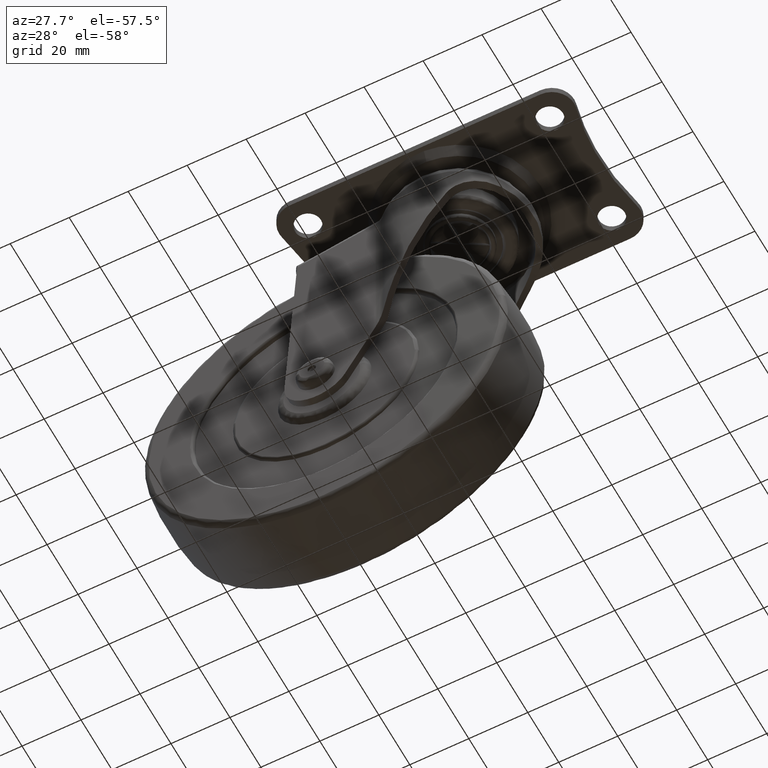
[diagram: clean part render]
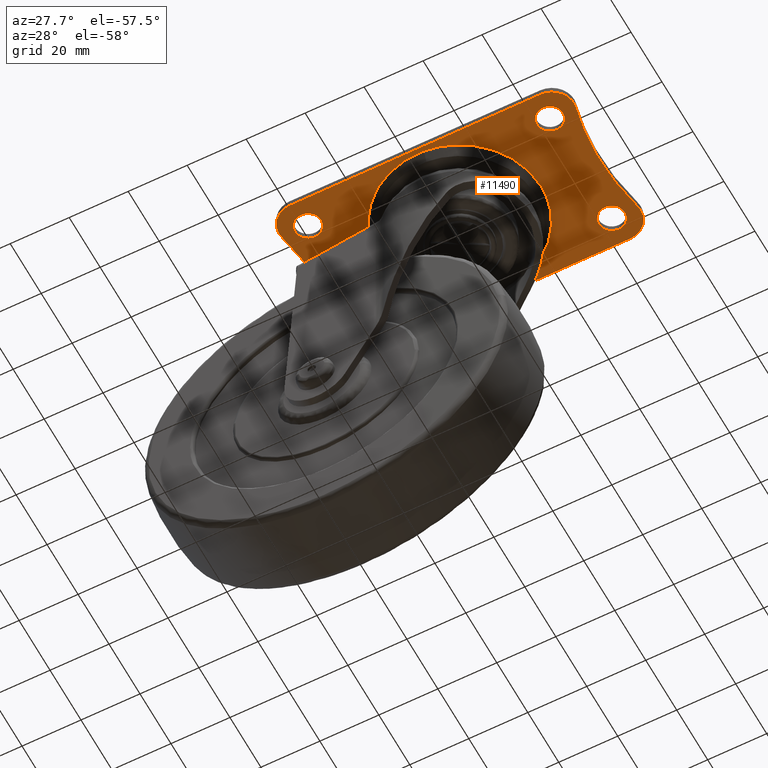
[diagram: same view with one face highlighted and labeled with its STEP entity id]
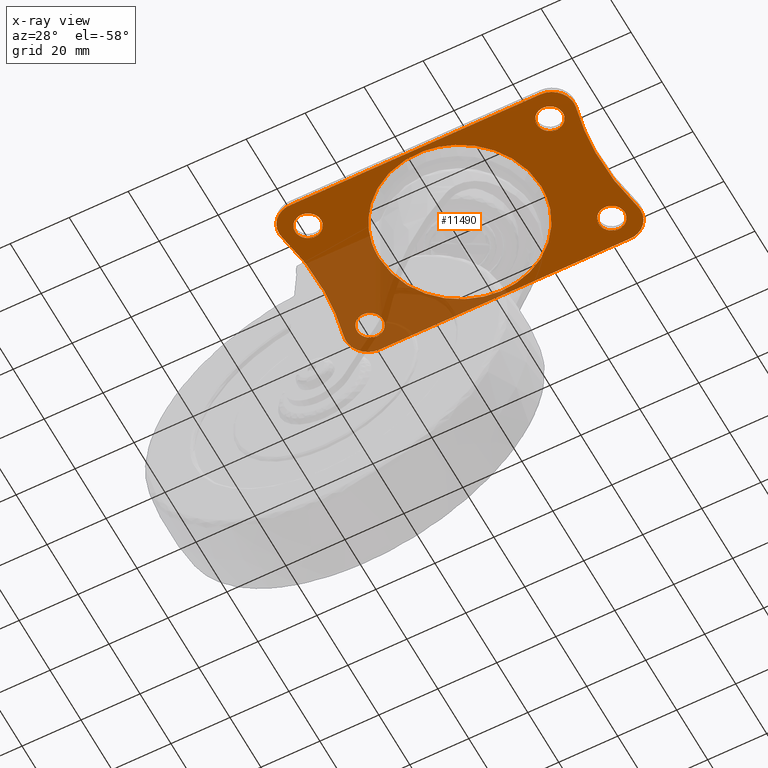
[diagram: x-ray of the same camera — body ghosted, the highlighted face saturated]
A machine part, auxiliary view. The second image highlights one B-rep face of the part: STEP entity #11490.
The next image is the same camera in x-ray: the body ghosted, the highlighted face saturated — about 31% of this face is hidden behind the body in this view.
In plain terms, the highlighted face is a freeform B-spline surface patch.
Its self-contained STEP definition (entity closure, byte-faithful):
#7739=CARTESIAN_POINT('',(2.400000000000000,20.0,83.199996999999996));
#7740=VERTEX_POINT('',#7739);
#7741=CARTESIAN_POINT('',(-1.654779978164111,24.386436268375920,83.199996999999996));
#7742=VERTEX_POINT('',#7741);
#7743=CARTESIAN_POINT('',(2.400000000000000,20.0,83.199996999999996));
#7744=CARTESIAN_POINT('',(2.400000000000000,24.067318162117896,83.199996999999996));
#7745=CARTESIAN_POINT('',(-1.654779978164111,24.386436268375917,83.199996999999996));
#7753=(BOUNDED_CURVE()B_SPLINE_CURVE(2,(#7743,#7744,#7745),.UNSPECIFIED.,.F.,.U.)B_SPLINE_CURVE_WITH_KNOTS((3,3),(0.0,0.236331300583262),.UNSPECIFIED.)CURVE()GEOMETRIC_REPRESENTATION_ITEM()RATIONAL_B_SPLINE_CURVE((1.0,0.723120658663195,0.969723356068502))REPRESENTATION_ITEM(''));
#7754=EDGE_CURVE('',#7740,#7742,#7753,.T.);
#7756=CARTESIAN_POINT('',(-2.345220021835888,15.613563731624090,83.199997000000010));
#7757=VERTEX_POINT('',#7756);
#7758=CARTESIAN_POINT('',(-2.345220021835889,15.613563731624085,83.199997000000010));
#7759=CARTESIAN_POINT('',(-2.172876471470055,15.599999999999998,83.199996999999996));
#7760=CARTESIAN_POINT('',(-2.0,15.600000000000000,83.199996999999996));
#7761=CARTESIAN_POINT('',(2.400000000000001,15.599999999999996,83.199996999999996));
#7762=CARTESIAN_POINT('',(2.400000000000000,20.0,83.199996999999996));
#7770=(BOUNDED_CURVE()B_SPLINE_CURVE(2,(#7758,#7759,#7760,#7761,#7762),.UNSPECIFIED.,.F.,.U.)B_SPLINE_CURVE_WITH_KNOTS((3,2,3),(0.736331300583262,0.750000000000000,1.0),.UNSPECIFIED.)CURVE()GEOMETRIC_REPRESENTATION_ITEM()RATIONAL_B_SPLINE_CURVE((0.969723356068503,0.983986122523352,1.0,0.707106781186548,1.0))REPRESENTATION_ITEM(''));
#7771=EDGE_CURVE('',#7757,#7740,#7770,.T.);
#7838=CARTESIAN_POINT('',(-6.400000000000000,20.0,83.199996999999996));
#7839=VERTEX_POINT('',#7838);
#7840=CARTESIAN_POINT('',(-1.654779978164111,24.386436268375920,83.199996999999996));
#7841=CARTESIAN_POINT('',(-1.827123528529945,24.399999999999999,83.199996999999996));
#7842=CARTESIAN_POINT('',(-2.0,24.399999999999999,83.199996999999996));
#7843=CARTESIAN_POINT('',(-6.400000000000000,24.400000000000002,83.199996999999996));
#7844=CARTESIAN_POINT('',(-6.400000000000000,20.0,83.199996999999996));
#7852=(BOUNDED_CURVE()B_SPLINE_CURVE(2,(#7840,#7841,#7842,#7843,#7844),.UNSPECIFIED.,.F.,.U.)B_SPLINE_CURVE_WITH_KNOTS((3,2,3),(0.236331300583262,0.250000000000000,0.500000000000000),.UNSPECIFIED.)CURVE()GEOMETRIC_REPRESENTATION_ITEM()RATIONAL_B_SPLINE_CURVE((0.969723356068503,0.983986122523352,1.0,0.707106781186548,1.0))REPRESENTATION_ITEM(''));
#7853=EDGE_CURVE('',#7742,#7839,#7852,.T.);
#7887=CARTESIAN_POINT('',(-6.400000000000000,20.0,83.199996999999996));
#7888=CARTESIAN_POINT('',(-6.400000000000000,15.932681837882114,83.199997000000010));
#7889=CARTESIAN_POINT('',(-2.345220021835889,15.613563731624090,83.199997000000010));
#7897=(BOUNDED_CURVE()B_SPLINE_CURVE(2,(#7887,#7888,#7889),.UNSPECIFIED.,.F.,.U.)B_SPLINE_CURVE_WITH_KNOTS((3,3),(0.500000000000000,0.736331300583261),.UNSPECIFIED.)CURVE()GEOMETRIC_REPRESENTATION_ITEM()RATIONAL_B_SPLINE_CURVE((1.0,0.723120658663196,0.969723356068501))REPRESENTATION_ITEM(''));
#7898=EDGE_CURVE('',#7839,#7757,#7897,.T.);
#7921=CARTESIAN_POINT('',(84.399992000000012,20.0,83.199996999999996));
#7922=VERTEX_POINT('',#7921);
#7923=CARTESIAN_POINT('',(80.345212021835891,24.386436268375920,83.199996999999996));
#7924=VERTEX_POINT('',#7923);
#7925=CARTESIAN_POINT('',(84.399992000000012,20.0,83.199996999999996));
#7926=CARTESIAN_POINT('',(84.399992000000026,24.067318162117907,83.199997000000010));
#7927=CARTESIAN_POINT('',(80.345212021835891,24.386436268375913,83.199996999999996));
#7935=(BOUNDED_CURVE()B_SPLINE_CURVE(2,(#7925,#7926,#7927),.UNSPECIFIED.,.F.,.U.)B_SPLINE_CURVE_WITH_KNOTS((3,3),(0.0,0.236331300583262),.UNSPECIFIED.)CURVE()GEOMETRIC_REPRESENTATION_ITEM()RATIONAL_B_SPLINE_CURVE((1.0,0.723120658663195,0.969723356068503))REPRESENTATION_ITEM(''));
#7936=EDGE_CURVE('',#7922,#7924,#7935,.T.);
#7938=CARTESIAN_POINT('',(79.654771978164121,15.613563731624090,83.199996999999996));
#7939=VERTEX_POINT('',#7938);
#7940=CARTESIAN_POINT('',(79.654771978164121,15.613563731624089,83.199996999999996));
#7941=CARTESIAN_POINT('',(79.827115528529959,15.600000000000000,83.199996999999996));
#7942=CARTESIAN_POINT('',(79.999992000000006,15.600000000000000,83.199996999999996));
#7943=CARTESIAN_POINT('',(84.399992000000012,15.599999999999996,83.199996999999996));
#7944=CARTESIAN_POINT('',(84.399992000000012,20.0,83.199996999999996));
#7952=(BOUNDED_CURVE()B_SPLINE_CURVE(2,(#7940,#7941,#7942,#7943,#7944),.UNSPECIFIED.,.F.,.U.)B_SPLINE_CURVE_WITH_KNOTS((3,2,3),(0.736331300583262,0.750000000000000,1.0),.UNSPECIFIED.)CURVE()GEOMETRIC_REPRESENTATION_ITEM()RATIONAL_B_SPLINE_CURVE((0.969723356068502,0.983986122523352,1.0,0.707106781186548,1.0))REPRESENTATION_ITEM(''));
#7953=EDGE_CURVE('',#7939,#7922,#7952,.T.);
#8020=CARTESIAN_POINT('',(75.599992000000000,20.0,83.199996999999996));
#8021=VERTEX_POINT('',#8020);
#8022=CARTESIAN_POINT('',(80.345212021835891,24.386436268375917,83.199996999999996));
#8023=CARTESIAN_POINT('',(80.172868471470053,24.400000000000006,83.199996999999996));
#8024=CARTESIAN_POINT('',(79.999992000000006,24.399999999999999,83.199996999999996));
#8025=CARTESIAN_POINT('',(75.599992000000000,24.400000000000002,83.199996999999996));
#8026=CARTESIAN_POINT('',(75.599992000000000,20.0,83.199996999999996));
#8034=(BOUNDED_CURVE()B_SPLINE_CURVE(2,(#8022,#8023,#8024,#8025,#8026),.UNSPECIFIED.,.F.,.U.)B_SPLINE_CURVE_WITH_KNOTS((3,2,3),(0.236331300583262,0.250000000000000,0.500000000000000),.UNSPECIFIED.)CURVE()GEOMETRIC_REPRESENTATION_ITEM()RATIONAL_B_SPLINE_CURVE((0.969723356068503,0.983986122523352,1.0,0.707106781186548,1.0))REPRESENTATION_ITEM(''));
#8035=EDGE_CURVE('',#7924,#8021,#8034,.T.);
#8069=CARTESIAN_POINT('',(75.599992000000000,20.0,83.199996999999996));
#8070=CARTESIAN_POINT('',(75.599991999999986,15.932681837882114,83.199997000000010));
#8071=CARTESIAN_POINT('',(79.654771978164121,15.613563731624090,83.199996999999996));
#8079=(BOUNDED_CURVE()B_SPLINE_CURVE(2,(#8069,#8070,#8071),.UNSPECIFIED.,.F.,.U.)B_SPLINE_CURVE_WITH_KNOTS((3,3),(0.500000000000000,0.736331300583261),.UNSPECIFIED.)CURVE()GEOMETRIC_REPRESENTATION_ITEM()RATIONAL_B_SPLINE_CURVE((1.0,0.723120658663196,0.969723356068501))REPRESENTATION_ITEM(''));
#8080=EDGE_CURVE('',#8021,#7939,#8079,.T.);
#8103=CARTESIAN_POINT('',(2.400000000000000,-20.0,83.199996999999996));
#8104=VERTEX_POINT('',#8103);
#8105=CARTESIAN_POINT('',(-1.654779978164111,-15.613563731624080,83.199996999999996));
#8106=VERTEX_POINT('',#8105);
#8107=CARTESIAN_POINT('',(2.400000000000000,-20.0,83.199996999999996));
#8108=CARTESIAN_POINT('',(2.400000000000000,-15.932681837882107,83.199996999999996));
#8109=CARTESIAN_POINT('',(-1.654779978164111,-15.613563731624087,83.199996999999996));
#8117=(BOUNDED_CURVE()B_SPLINE_CURVE(2,(#8107,#8108,#8109),.UNSPECIFIED.,.F.,.U.)B_SPLINE_CURVE_WITH_KNOTS((3,3),(0.0,0.236331300583262),.UNSPECIFIED.)CURVE()GEOMETRIC_REPRESENTATION_ITEM()RATIONAL_B_SPLINE_CURVE((1.0,0.723120658663195,0.969723356068502))REPRESENTATION_ITEM(''));
#8118=EDGE_CURVE('',#8104,#8106,#8117,.T.);
#8120=CARTESIAN_POINT('',(-2.345220021835888,-24.386436268375920,83.199997000000010));
#8121=VERTEX_POINT('',#8120);
#8122=CARTESIAN_POINT('',(-2.345220021835889,-24.386436268375920,83.199997000000010));
#8123=CARTESIAN_POINT('',(-2.172876471470055,-24.400000000000009,83.199996999999996));
#8124=CARTESIAN_POINT('',(-2.0,-24.399999999999999,83.199996999999996));
#8125=CARTESIAN_POINT('',(2.400000000000001,-24.400000000000002,83.199996999999996));
#8126=CARTESIAN_POINT('',(2.400000000000000,-20.0,83.199996999999996));
#8134=(BOUNDED_CURVE()B_SPLINE_CURVE(2,(#8122,#8123,#8124,#8125,#8126),.UNSPECIFIED.,.F.,.U.)B_SPLINE_CURVE_WITH_KNOTS((3,2,3),(0.736331300583262,0.750000000000000,1.0),.UNSPECIFIED.)CURVE()GEOMETRIC_REPRESENTATION_ITEM()RATIONAL_B_SPLINE_CURVE((0.969723356068503,0.983986122523352,1.0,0.707106781186548,1.0))REPRESENTATION_ITEM(''));
#8135=EDGE_CURVE('',#8121,#8104,#8134,.T.);
#8202=CARTESIAN_POINT('',(-6.400000000000000,-20.0,83.199996999999996));
#8203=VERTEX_POINT('',#8202);
#8204=CARTESIAN_POINT('',(-1.654779978164111,-15.613563731624085,83.199996999999996));
#8205=CARTESIAN_POINT('',(-1.827123528529945,-15.599999999999998,83.199996999999996));
#8206=CARTESIAN_POINT('',(-2.0,-15.600000000000000,83.199996999999996));
#8207=CARTESIAN_POINT('',(-6.400000000000000,-15.599999999999996,83.199996999999996));
#8208=CARTESIAN_POINT('',(-6.400000000000000,-20.0,83.199996999999996));
#8216=(BOUNDED_CURVE()B_SPLINE_CURVE(2,(#8204,#8205,#8206,#8207,#8208),.UNSPECIFIED.,.F.,.U.)B_SPLINE_CURVE_WITH_KNOTS((3,2,3),(0.236331300583262,0.250000000000000,0.500000000000000),.UNSPECIFIED.)CURVE()GEOMETRIC_REPRESENTATION_ITEM()RATIONAL_B_SPLINE_CURVE((0.969723356068503,0.983986122523352,1.0,0.707106781186548,1.0))REPRESENTATION_ITEM(''));
#8217=EDGE_CURVE('',#8106,#8203,#8216,.T.);
#8251=CARTESIAN_POINT('',(-6.400000000000000,-20.0,83.199996999999996));
#8252=CARTESIAN_POINT('',(-6.400000000000000,-24.067318162117882,83.199997000000010));
#8253=CARTESIAN_POINT('',(-2.345220021835889,-24.386436268375913,83.199997000000010));
#8261=(BOUNDED_CURVE()B_SPLINE_CURVE(2,(#8251,#8252,#8253),.UNSPECIFIED.,.F.,.U.)B_SPLINE_CURVE_WITH_KNOTS((3,3),(0.500000000000000,0.736331300583261),.UNSPECIFIED.)CURVE()GEOMETRIC_REPRESENTATION_ITEM()RATIONAL_B_SPLINE_CURVE((1.0,0.723120658663196,0.969723356068501))REPRESENTATION_ITEM(''));
#8262=EDGE_CURVE('',#8203,#8121,#8261,.T.);
#8285=CARTESIAN_POINT('',(84.399992000000012,-20.0,83.199996999999996));
#8286=VERTEX_POINT('',#8285);
#8287=CARTESIAN_POINT('',(80.345212021835891,-15.613563731624090,83.199996999999996));
#8288=VERTEX_POINT('',#8287);
#8289=CARTESIAN_POINT('',(84.399992000000012,-20.0,83.199996999999996));
#8290=CARTESIAN_POINT('',(84.399992000000012,-15.932681837882114,83.199996999999996));
#8291=CARTESIAN_POINT('',(80.345212021835891,-15.613563731624087,83.199996999999996));
#8299=(BOUNDED_CURVE()B_SPLINE_CURVE(2,(#8289,#8290,#8291),.UNSPECIFIED.,.F.,.U.)B_SPLINE_CURVE_WITH_KNOTS((3,3),(0.0,0.236331300583262),.UNSPECIFIED.)CURVE()GEOMETRIC_REPRESENTATION_ITEM()RATIONAL_B_SPLINE_CURVE((1.0,0.723120658663196,0.969723356068502))REPRESENTATION_ITEM(''));
#8300=EDGE_CURVE('',#8286,#8288,#8299,.T.);
#8302=CARTESIAN_POINT('',(79.654771978164121,-24.386436268375920,83.199996999999996));
#8303=VERTEX_POINT('',#8302);
#8304=CARTESIAN_POINT('',(79.654771978164121,-24.386436268375920,83.199996999999996));
#8305=CARTESIAN_POINT('',(79.827115528529959,-24.399999999999999,83.199996999999996));
#8306=CARTESIAN_POINT('',(79.999992000000006,-24.399999999999999,83.199996999999996));
#8307=CARTESIAN_POINT('',(84.399992000000012,-24.400000000000002,83.199996999999996));
#8308=CARTESIAN_POINT('',(84.399992000000012,-20.0,83.199996999999996));
#8316=(BOUNDED_CURVE()B_SPLINE_CURVE(2,(#8304,#8305,#8306,#8307,#8308),.UNSPECIFIED.,.F.,.U.)B_SPLINE_CURVE_WITH_KNOTS((3,2,3),(0.736331300583262,0.750000000000000,1.0),.UNSPECIFIED.)CURVE()GEOMETRIC_REPRESENTATION_ITEM()RATIONAL_B_SPLINE_CURVE((0.969723356068502,0.983986122523352,1.0,0.707106781186548,1.0))REPRESENTATION_ITEM(''));
#8317=EDGE_CURVE('',#8303,#8286,#8316,.T.);
#8384=CARTESIAN_POINT('',(75.599992000000000,-20.0,83.199996999999996));
#8385=VERTEX_POINT('',#8384);
#8386=CARTESIAN_POINT('',(80.345212021835891,-15.613563731624090,83.199996999999996));
#8387=CARTESIAN_POINT('',(80.172868471470068,-15.600000000000005,83.199997000000010));
#8388=CARTESIAN_POINT('',(79.999992000000006,-15.600000000000000,83.199996999999996));
#8389=CARTESIAN_POINT('',(75.599992000000000,-15.599999999999996,83.199996999999996));
#8390=CARTESIAN_POINT('',(75.599992000000000,-20.0,83.199996999999996));
#8398=(BOUNDED_CURVE()B_SPLINE_CURVE(2,(#8386,#8387,#8388,#8389,#8390),.UNSPECIFIED.,.F.,.U.)B_SPLINE_CURVE_WITH_KNOTS((3,2,3),(0.236331300583262,0.250000000000000,0.500000000000000),.UNSPECIFIED.)CURVE()GEOMETRIC_REPRESENTATION_ITEM()RATIONAL_B_SPLINE_CURVE((0.969723356068502,0.983986122523352,1.0,0.707106781186548,1.0))REPRESENTATION_ITEM(''));
#8399=EDGE_CURVE('',#8288,#8385,#8398,.T.);
#8433=CARTESIAN_POINT('',(75.599992000000000,-20.0,83.199996999999996));
#8434=CARTESIAN_POINT('',(75.599991999999986,-24.067318162117882,83.199997000000010));
#8435=CARTESIAN_POINT('',(79.654771978164121,-24.386436268375913,83.199996999999996));
#8443=(BOUNDED_CURVE()B_SPLINE_CURVE(2,(#8433,#8434,#8435),.UNSPECIFIED.,.F.,.U.)B_SPLINE_CURVE_WITH_KNOTS((3,3),(0.500000000000000,0.736331300583261),.UNSPECIFIED.)CURVE()GEOMETRIC_REPRESENTATION_ITEM()RATIONAL_B_SPLINE_CURVE((1.0,0.723120658663196,0.969723356068501))REPRESENTATION_ITEM(''));
#8444=EDGE_CURVE('',#8385,#8303,#8443,.T.);
#8463=CARTESIAN_POINT('',(41.157627754878988,-27.415259997804519,83.199997000001900));
#8464=VERTEX_POINT('',#8463);
#8465=CARTESIAN_POINT('',(13.428697377158080,-10.117327732506450,83.199997000003719));
#8466=VERTEX_POINT('',#8465);
#8467=CARTESIAN_POINT('',(41.157627754878988,-27.415259997804512,83.199997000001900));
#8468=CARTESIAN_POINT('',(40.080479255922135,-27.500033423175704,83.199997000000010));
#8469=CARTESIAN_POINT('',(39.0,-27.500033423175701,83.199996999999996));
#8470=CARTESIAN_POINT('',(20.306193332083783,-27.500033423175704,83.199996999999996));
#8471=CARTESIAN_POINT('',(13.428697377158084,-10.117327732506451,83.199997000003719));
#8479=(BOUNDED_CURVE()B_SPLINE_CURVE(2,(#8467,#8468,#8469,#8470,#8471),.UNSPECIFIED.,.F.,.U.)B_SPLINE_CURVE_WITH_KNOTS((3,2,3),(0.236331300632629,0.250000000000000,0.437532549939151),.UNSPECIFIED.)CURVE()GEOMETRIC_REPRESENTATION_ITEM()RATIONAL_B_SPLINE_CURVE((0.969723356171528,0.983986122581189,1.0,0.780291951264110,0.890203187500994))REPRESENTATION_ITEM(''));
#8480=EDGE_CURVE('',#8464,#8466,#8479,.T.);
#8540=CARTESIAN_POINT('',(11.499966576824299,0.0,83.199996999999996));
#8541=VERTEX_POINT('',#8540);
#8542=CARTESIAN_POINT('',(13.428697377158084,-10.117327732506451,83.199997000003719));
#8543=CARTESIAN_POINT('',(11.499966576824303,-5.242507001456251,83.199996999999996));
#8544=CARTESIAN_POINT('',(11.499966576824299,0.0,83.199996999999996));
#8552=(BOUNDED_CURVE()B_SPLINE_CURVE(2,(#8542,#8543,#8544),.UNSPECIFIED.,.F.,.U.)B_SPLINE_CURVE_WITH_KNOTS((3,3),(0.437532549939151,0.500000000000000),.UNSPECIFIED.)CURVE()GEOMETRIC_REPRESENTATION_ITEM()RATIONAL_B_SPLINE_CURVE((0.890203187500994,0.926814829922437,1.0))REPRESENTATION_ITEM(''));
#8553=EDGE_CURVE('',#8466,#8541,#8552,.T.);
#8555=CARTESIAN_POINT('',(66.500033423175708,0.0,83.199996999999996));
#8556=VERTEX_POINT('',#8555);
#8557=CARTESIAN_POINT('',(11.499966576824299,0.0,83.199996999999996));
#8558=CARTESIAN_POINT('',(11.499966576824299,27.500033423175697,83.199996999999996));
#8559=CARTESIAN_POINT('',(39.0,27.500033423175701,83.199996999999996));
#8560=CARTESIAN_POINT('',(66.500033423175708,27.500033423175697,83.199996999999996));
#8561=CARTESIAN_POINT('',(66.500033423175708,0.0,83.199996999999996));
#8569=(BOUNDED_CURVE()B_SPLINE_CURVE(2,(#8557,#8558,#8559,#8560,#8561),.UNSPECIFIED.,.F.,.U.)B_SPLINE_CURVE_WITH_KNOTS((3,2,3),(0.500000000000000,0.750000000000000,1.0),.UNSPECIFIED.)CURVE()GEOMETRIC_REPRESENTATION_ITEM()RATIONAL_B_SPLINE_CURVE((1.0,0.707106781186547,1.0,0.707106781186547,1.0))REPRESENTATION_ITEM(''));
#8570=EDGE_CURVE('',#8541,#8556,#8569,.T.);
#8572=CARTESIAN_POINT('',(66.500033423175708,0.0,83.199996999999996));
#8573=CARTESIAN_POINT('',(66.500033423175694,-25.420769416646010,83.199997000000010));
#8574=CARTESIAN_POINT('',(41.157627754878988,-27.415259997804512,83.199997000001900));
#8582=(BOUNDED_CURVE()B_SPLINE_CURVE(2,(#8572,#8573,#8574),.UNSPECIFIED.,.F.,.U.)B_SPLINE_CURVE_WITH_KNOTS((3,3),(0.0,0.236331300632629),.UNSPECIFIED.)CURVE()GEOMETRIC_REPRESENTATION_ITEM()RATIONAL_B_SPLINE_CURVE((1.0,0.723120658605358,0.969723356171528))REPRESENTATION_ITEM(''));
#8583=EDGE_CURVE('',#8556,#8464,#8582,.T.);
#11341=CARTESIAN_POINT('',(-15.994845031121271,-31.897099887584680,83.199996999999996));
#11342=CARTESIAN_POINT('',(93.994845339188416,-31.897099887584680,83.199996999999996));
#11343=CARTESIAN_POINT('',(-15.994845031121271,31.897101443264450,83.199996999999996));
#11344=CARTESIAN_POINT('',(93.994845339188416,31.897101443264450,83.199996999999996));
#11345=B_SPLINE_SURFACE_WITH_KNOTS('',1,1,((#11341,#11343),(#11342,#11344)),.UNSPECIFIED.,.F.,.F.,.U.,(2,2),(2,2),(0.0,109.989690370309700),(0.0,63.794201330849127),.UNSPECIFIED.);
#11346=CARTESIAN_POINT('',(-3.499990444322345,28.999999999994049,83.199996999999996));
#11347=VERTEX_POINT('',#11346);
#11348=CARTESIAN_POINT('',(81.499987156711214,28.999999999998550,83.199996999999996));
#11349=VERTEX_POINT('',#11348);
#11350=CARTESIAN_POINT('',(-3.499990444322345,28.999999999994049,83.199996999999996));
#11351=CARTESIAN_POINT('',(81.499987156711214,28.999999999998550,83.199996999999996));
#11352=QUASI_UNIFORM_CURVE('',1,(#11350,#11351),.UNSPECIFIED.,.F.,.U.);
#11353=EDGE_CURVE('',#11347,#11349,#11352,.T.);
#11354=ORIENTED_EDGE('',*,*,#11353,.T.);
#11355=CARTESIAN_POINT('',(88.794599946689317,19.756778091586199,83.199996999999996));
#11356=VERTEX_POINT('',#11355);
#11357=CARTESIAN_POINT('',(88.794599946689345,19.756778091586192,83.199996999999996));
#11358=CARTESIAN_POINT('',(89.639576239693668,23.292567217315479,83.199996999999996));
#11359=CARTESIAN_POINT('',(87.387458077331630,26.146293458587390,83.199996999999996));
#11360=CARTESIAN_POINT('',(85.135339914969592,29.000019699859294,83.199996999999996));
#11361=CARTESIAN_POINT('',(81.499987156711214,28.999999999998561,83.199996999999996));
#11369=(BOUNDED_CURVE()B_SPLINE_CURVE(2,(#11357,#11358,#11359,#11360,#11361),.UNSPECIFIED.,.F.,.U.)B_SPLINE_CURVE_WITH_KNOTS((3,2,3),(0.0,0.500000000000000,1.0),.UNSPECIFIED.)CURVE()GEOMETRIC_REPRESENTATION_ITEM()RATIONAL_B_SPLINE_CURVE((1.0,0.899861227581974,1.0,0.899861227581974,1.0))REPRESENTATION_ITEM(''));
#11370=EDGE_CURVE('',#11356,#11349,#11369,.T.);
#11371=ORIENTED_EDGE('',*,*,#11370,.F.);
#11372=CARTESIAN_POINT('',(88.794588031726292,-19.756728233502852,83.199996999999996));
#11373=VERTEX_POINT('',#11372);
#11374=CARTESIAN_POINT('',(88.794599946689317,19.756778091586199,83.199996999999996));
#11375=CARTESIAN_POINT('',(84.073168251392545,0.000026352747598,83.199996999999996));
#11376=CARTESIAN_POINT('',(88.794588031726448,-19.756728233502798,83.199996999999996));
#11384=(BOUNDED_CURVE()B_SPLINE_CURVE(2,(#11374,#11375,#11376),.UNSPECIFIED.,.F.,.U.)CURVE()GEOMETRIC_REPRESENTATION_ITEM()QUASI_UNIFORM_CURVE()RATIONAL_B_SPLINE_CURVE((1.0,0.972612457605492,1.0))REPRESENTATION_ITEM(''));
#11385=EDGE_CURVE('',#11356,#11373,#11384,.T.);
#11386=ORIENTED_EDGE('',*,*,#11385,.T.);
#11387=CARTESIAN_POINT('',(81.499986764012007,-28.999999999998199,83.199996999999996));
#11388=VERTEX_POINT('',#11387);
#11389=CARTESIAN_POINT('',(81.499986764012007,-28.999999999998199,83.199996999999996));
#11390=CARTESIAN_POINT('',(85.135342363460495,-28.999992850387436,83.199996999999996));
#11391=CARTESIAN_POINT('',(87.387452608100077,-26.146256741269781,83.199996999999996));
#11392=CARTESIAN_POINT('',(89.639562852739658,-23.292520632152126,83.199996999999996));
#11393=CARTESIAN_POINT('',(88.794588031726292,-19.756728233502852,83.199996999999996));
#11401=(BOUNDED_CURVE()B_SPLINE_CURVE(2,(#11389,#11390,#11391,#11392,#11393),.UNSPECIFIED.,.F.,.U.)B_SPLINE_CURVE_WITH_KNOTS((3,2,3),(0.0,0.500000000000000,1.0),.UNSPECIFIED.)CURVE()GEOMETRIC_REPRESENTATION_ITEM()RATIONAL_B_SPLINE_CURVE((1.0,0.899862098704862,1.0,0.899862098704862,1.0))REPRESENTATION_ITEM(''));
#11402=EDGE_CURVE('',#11388,#11373,#11401,.T.);
#11403=ORIENTED_EDGE('',*,*,#11402,.F.);
#11404=CARTESIAN_POINT('',(-3.500000000000000,-29.0,83.199996999999996));
#11405=VERTEX_POINT('',#11404);
#11406=CARTESIAN_POINT('',(81.499986764012007,-28.999999999998199,83.199996999999996));
#11407=CARTESIAN_POINT('',(-3.500000000000000,-29.0,83.199996999999996));
#11408=QUASI_UNIFORM_CURVE('',1,(#11406,#11407),.UNSPECIFIED.,.F.,.U.);
#11409=EDGE_CURVE('',#11388,#11405,#11408,.T.);
#11410=ORIENTED_EDGE('',*,*,#11409,.T.);
#11411=CARTESIAN_POINT('',(-10.794595360556499,-19.756762057047951,83.199996999999996));
#11412=VERTEX_POINT('',#11411);
#11413=CARTESIAN_POINT('',(-10.794595360556491,-19.756762057047951,83.199996999999996));
#11414=CARTESIAN_POINT('',(-11.639565406184634,-23.292547059645127,83.199997000000010));
#11415=CARTESIAN_POINT('',(-9.387456351096811,-26.146273529822562,83.199996999999996));
#11416=CARTESIAN_POINT('',(-7.135347296008994,-29.0,83.199997000000010));
#11417=CARTESIAN_POINT('',(-3.500000000000000,-29.0,83.199996999999996));
#11425=(BOUNDED_CURVE()B_SPLINE_CURVE(2,(#11413,#11414,#11415,#11416,#11417),.UNSPECIFIED.,.F.,.U.)B_SPLINE_CURVE_WITH_KNOTS((3,2,3),(0.0,0.500000000000000,1.0),.UNSPECIFIED.)CURVE()GEOMETRIC_REPRESENTATION_ITEM()RATIONAL_B_SPLINE_CURVE((1.0,0.899861972001727,1.0,0.899861972001727,1.0))REPRESENTATION_ITEM(''));
#11426=EDGE_CURVE('',#11412,#11405,#11425,.T.);
#11427=ORIENTED_EDGE('',*,*,#11426,.F.);
#11428=CARTESIAN_POINT('',(-10.794594074284319,19.756758731484851,83.199996999999996));
#11429=VERTEX_POINT('',#11428);
#11430=CARTESIAN_POINT('',(-10.794595360556499,-19.756762057047951,83.199996999999996));
#11431=CARTESIAN_POINT('',(-6.073174002206653,-0.000001816476598,83.199996999999996));
#11432=CARTESIAN_POINT('',(-10.794594074284200,19.756758731484830,83.199996999999996));
#11440=(BOUNDED_CURVE()B_SPLINE_CURVE(2,(#11430,#11431,#11432),.UNSPECIFIED.,.F.,.U.)CURVE()GEOMETRIC_REPRESENTATION_ITEM()QUASI_UNIFORM_CURVE()RATIONAL_B_SPLINE_CURVE((1.0,0.972612535471422,1.0))REPRESENTATION_ITEM(''));
#11441=EDGE_CURVE('',#11412,#11429,#11440,.T.);
#11442=ORIENTED_EDGE('',*,*,#11441,.T.);
#11443=CARTESIAN_POINT('',(-3.499990444322346,28.999999999993911,83.199996999999996));
#11444=CARTESIAN_POINT('',(-7.135341781424623,29.000004631759985,83.199996999999996));
#11445=CARTESIAN_POINT('',(-9.387454485703620,26.146275893526809,83.199996999999996));
#11446=CARTESIAN_POINT('',(-11.639567189982619,23.292547155293637,83.199996999999996));
#11447=CARTESIAN_POINT('',(-10.794594074284319,19.756758731484851,83.199996999999996));
#11455=(BOUNDED_CURVE()B_SPLINE_CURVE(2,(#11443,#11444,#11445,#11446,#11447),.UNSPECIFIED.,.F.,.U.)B_SPLINE_CURVE_WITH_KNOTS((3,2,3),(0.0,0.500000000000000,1.0),.UNSPECIFIED.)CURVE()GEOMETRIC_REPRESENTATION_ITEM()RATIONAL_B_SPLINE_CURVE((1.0,0.899861781696651,1.0,0.899861781696651,1.0))REPRESENTATION_ITEM(''));
#11456=EDGE_CURVE('',#11347,#11429,#11455,.T.);
#11457=ORIENTED_EDGE('',*,*,#11456,.F.);
#11458=EDGE_LOOP('',(#11354,#11371,#11386,#11403,#11410,#11427,#11442,#11457));
#11459=FACE_OUTER_BOUND('',#11458,.T.);
#11460=ORIENTED_EDGE('',*,*,#8570,.F.);
#11461=ORIENTED_EDGE('',*,*,#8553,.F.);
#11462=ORIENTED_EDGE('',*,*,#8480,.F.);
#11463=ORIENTED_EDGE('',*,*,#8583,.F.);
#11464=EDGE_LOOP('',(#11460,#11461,#11462,#11463));
#11465=FACE_BOUND('',#11464,.T.);
#11466=ORIENTED_EDGE('',*,*,#8444,.T.);
#11467=ORIENTED_EDGE('',*,*,#8317,.T.);
#11468=ORIENTED_EDGE('',*,*,#8300,.T.);
#11469=ORIENTED_EDGE('',*,*,#8399,.T.);
#11470=EDGE_LOOP('',(#11466,#11467,#11468,#11469));
#11471=FACE_BOUND('',#11470,.T.);
#11472=ORIENTED_EDGE('',*,*,#8262,.T.);
#11473=ORIENTED_EDGE('',*,*,#8135,.T.);
#11474=ORIENTED_EDGE('',*,*,#8118,.T.);
#11475=ORIENTED_EDGE('',*,*,#8217,.T.);
#11476=EDGE_LOOP('',(#11472,#11473,#11474,#11475));
#11477=FACE_BOUND('',#11476,.T.);
#11478=ORIENTED_EDGE('',*,*,#8080,.T.);
#11479=ORIENTED_EDGE('',*,*,#7953,.T.);
#11480=ORIENTED_EDGE('',*,*,#7936,.T.);
#11481=ORIENTED_EDGE('',*,*,#8035,.T.);
#11482=EDGE_LOOP('',(#11478,#11479,#11480,#11481));
#11483=FACE_BOUND('',#11482,.T.);
#11484=ORIENTED_EDGE('',*,*,#7898,.T.);
#11485=ORIENTED_EDGE('',*,*,#7771,.T.);
#11486=ORIENTED_EDGE('',*,*,#7754,.T.);
#11487=ORIENTED_EDGE('',*,*,#7853,.T.);
#11488=EDGE_LOOP('',(#11484,#11485,#11486,#11487));
#11489=FACE_BOUND('',#11488,.T.);
#11490=ADVANCED_FACE('',(#11459,#11465,#11471,#11477,#11483,#11489),#11345,.F.);